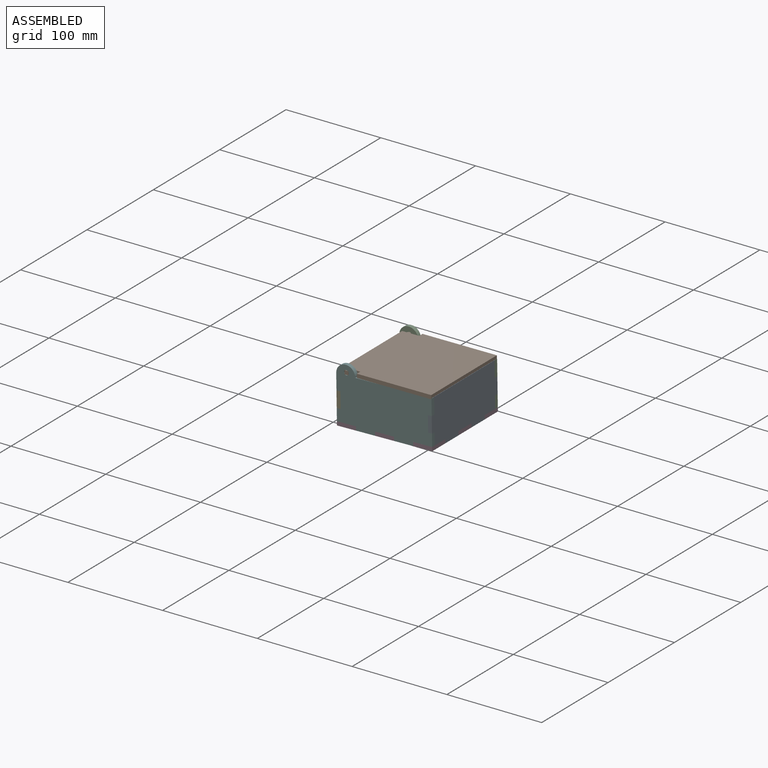
[diagram: assembled view]
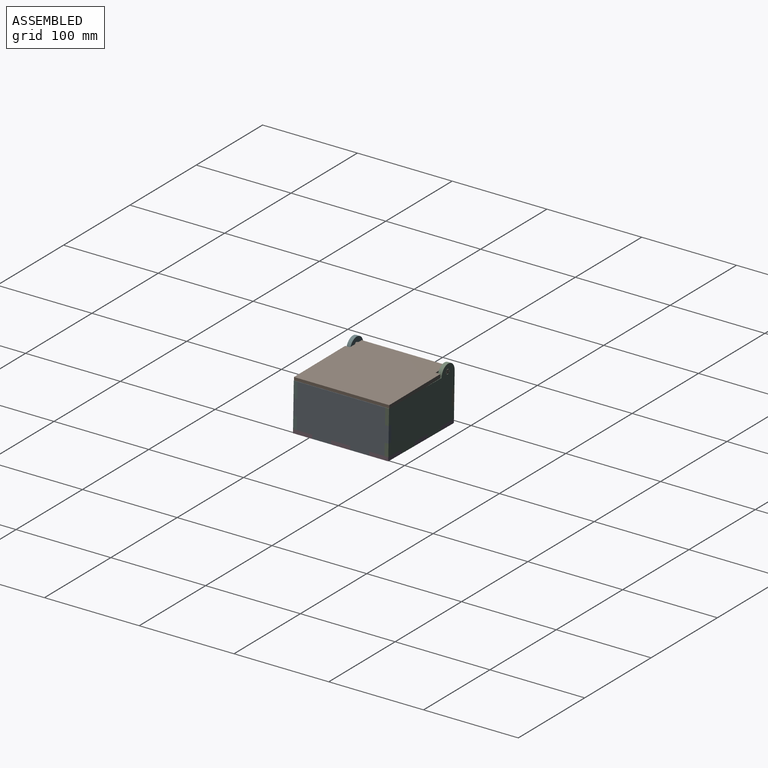
[diagram: assembled view, second angle]
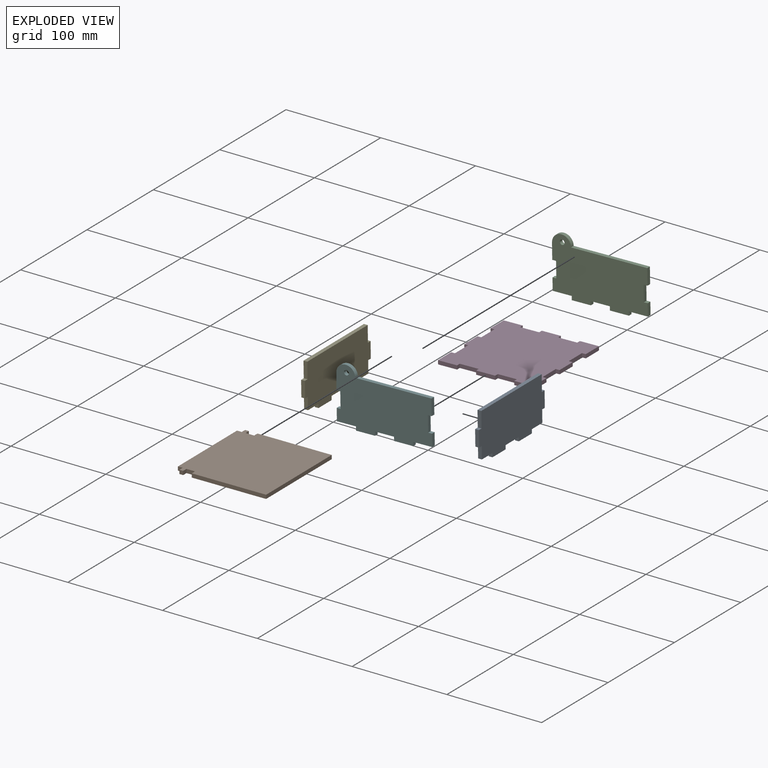
[diagram: exploded view]
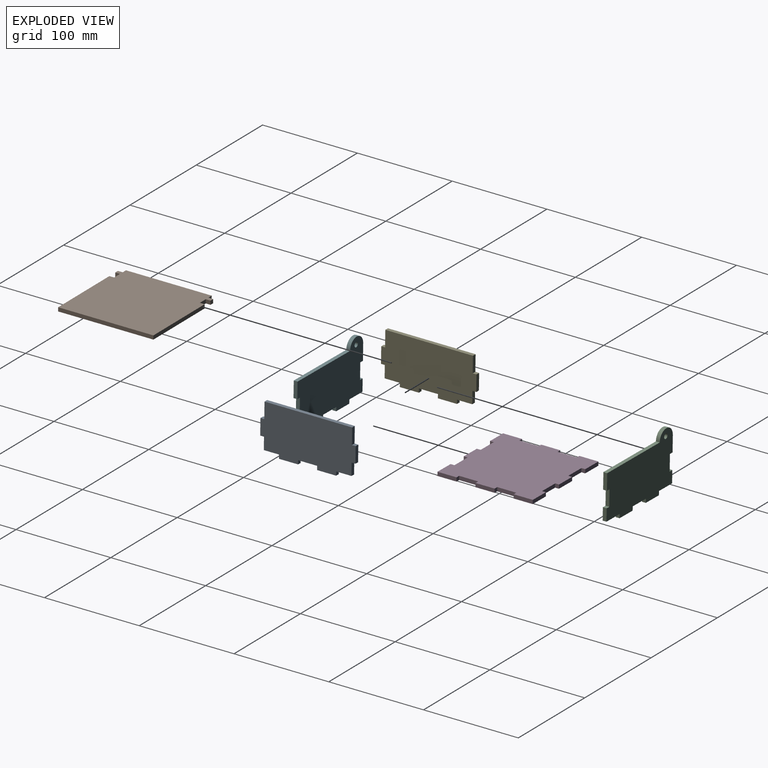
[diagram: exploded view, second angle]
ASSEMBLY  parts=6 mates=5
PART A: 22 faces, bbox 4x100x50 mm
  f0: plane 16.67x4mm, normal (0,-1,0), area 66.7mm2, adj f5,f6,f14,f18
  f1: plane 20x4mm, normal (0,0,-1), area 80mm2, adj f5,f6,f11,f15
  f2: plane 20x4mm, normal (0,0,-1), area 80mm2, adj f5,f6,f9,f16
  f3: plane 16.67x4mm, normal (0,1,0), area 66.7mm2, adj f5,f6,f10,f21
  f4: plane 92x4mm, normal (0,0,1), area 368mm2, adj f5,f6,f19,f20
  f5: plane 100x50mm, normal (1,0,0), area 4525.3mm2, adj f0,f1,f2,f3,f4,f7,f8,f9
  f6: plane 100x50mm, normal (-1,0,0), area 4525.3mm2, adj f0,f1,f2,f3,f4,f7,f8,f9
  f7: plane 12.67x4mm, normal (0,1,0), area 50.7mm2, adj f5,f6,f8,f10
  f8: plane 16x4mm, normal (0,0,-1), area 64mm2, adj f5,f6,f7,f9
  f9: plane 4x4mm, normal (0,1,0), area 16mm2, adj f2,f5,f6,f8
  f10: plane 4x4mm, normal (0,0,-1), area 16mm2, adj f3,f5,f6,f7
  f11: plane 4x4mm, normal (0,-1,0), area 16mm2, adj f1,f5,f6,f12
  f12: plane 16x4mm, normal (0,0,-1), area 64mm2, adj f5,f6,f11,f13
  f13: plane 12.67x4mm, normal (0,-1,0), area 50.7mm2, adj f5,f6,f12,f14
  f14: plane 4x4mm, normal (0,0,-1), area 16mm2, adj f0,f5,f6,f13
  f15: plane 4x4mm, normal (0,1,0), area 16mm2, adj f1,f5,f6,f17
  f16: plane 4x4mm, normal (0,-1,0), area 16mm2, adj f2,f5,f6,f17
  f17: plane 20x4mm, normal (0,0,-1), area 80mm2, adj f5,f6,f15,f16
  f18: plane 4x4mm, normal (0,0,1), area 16mm2, adj f0,f5,f6,f19
  f19: plane 16.67x4mm, normal (0,-1,0), area 66.7mm2, adj f4,f5,f6,f18
  f20: plane 16.67x4mm, normal (0,1,0), area 66.7mm2, adj f4,f5,f6,f21
  f21: plane 4x4mm, normal (0,0,1), area 16mm2, adj f3,f5,f6,f20
PART B: 18 faces, bbox 100x96x4 mm
  f0: plane 100x96mm, normal (0,0,-1), area 9460mm2, adj f2,f3,f4,f5,f6,f7,f8,f9
  f1: plane 100x96mm, normal (0,0,1), area 9460mm2, adj f2,f3,f4,f5,f6,f7,f8,f9
  f2: plane 5x4mm, normal (0,1,0), area 20mm2, adj f0,f1,f12,f16
  f3: plane 5x4mm, normal (0,-1,0), area 20mm2, adj f0,f1,f6,f16
  f4: plane 5x4mm, normal (0,1,0), area 20mm2, adj f0,f1,f13,f15
  f5: plane 5x4mm, normal (0,-1,0), area 20mm2, adj f0,f1,f7,f15
  f6: plane 5x4mm, normal (1,0,0), area 20mm2, adj f0,f1,f3,f17
  f7: plane 5x4mm, normal (-1,0,0), area 20mm2, adj f0,f1,f5,f17
  f8: plane 78x4mm, normal (-1,0,0), area 312mm2, adj f0,f1,f10,f14
  f9: plane 78x4mm, normal (1,0,0), area 312mm2, adj f0,f1,f10,f11
  f10: plane 100x4mm, normal (0,1,0), area 400mm2, adj f0,f1,f8,f9
  f11: plane 5x4mm, normal (0,-1,0), area 20mm2, adj f0,f1,f9,f12
  f12: plane 9x4mm, normal (1,0,0), area 36mm2, adj f0,f1,f2,f11
  f13: plane 9x4mm, normal (-1,0,0), area 36mm2, adj f0,f1,f4,f14
  f14: plane 5x4mm, normal (0,-1,0), area 20mm2, adj f0,f1,f8,f13
  f15: plane 4x4mm, normal (-1,0,0), area 16mm2, adj f0,f1,f4,f5
  f16: plane 4x4mm, normal (1,0,0), area 16mm2, adj f0,f1,f2,f3
  f17: plane 90x4mm, normal (0,-1,0), area 360mm2, adj f0,f1,f6,f7
PART C: 24 faces, bbox 100x4x60 mm
  f0: plane 80x4mm, normal (0,0,1), area 320mm2, adj f5,f6,f8,f22
  f1: plane 12.67x4mm, normal (-1,0,0), area 50.7mm2, adj f5,f6,f9,f19
  f2: plane 20x4mm, normal (0,0,-1), area 80mm2, adj f5,f6,f13,f20
  f3: plane 20x4mm, normal (0,0,-1), area 80mm2, adj f5,f6,f12,f18
  f4: plane 12.67x4mm, normal (1,0,0), area 50.7mm2, adj f5,f6,f15,f21
  f5: plane 100x60mm, normal (0,-1,0), area 4764.1mm2, adj f0,f1,f2,f3,f4,f7,f8,f9
  f6: plane 100x60mm, normal (0,1,0), area 4764.1mm2, adj f0,f1,f2,f3,f4,f7,f8,f9
  f7: plane 16.67x4mm, normal (-1,0,0), area 66.7mm2, adj f5,f6,f11,f22
  f8: plane 16.67x4mm, normal (1,0,0), area 66.7mm2, adj f0,f5,f6,f16
  f9: plane 4x4mm, normal (0,0,1), area 16mm2, adj f1,f5,f6,f10
  f10: plane 16.67x4mm, normal (-1,0,0), area 66.7mm2, adj f5,f6,f9,f11
  f11: plane 4x4mm, normal (0,0,-1), area 16mm2, adj f5,f6,f7,f10
  f12: plane 4x4mm, normal (1,0,0), area 16mm2, adj f3,f5,f6,f14
  f13: plane 4x4mm, normal (-1,0,0), area 16mm2, adj f2,f5,f6,f14
  f14: plane 20x4mm, normal (0,0,-1), area 80mm2, adj f5,f6,f12,f13
  f15: plane 4x4mm, normal (0,0,1), area 16mm2, adj f4,f5,f6,f17
  f16: plane 4x4mm, normal (0,0,-1), area 16mm2, adj f5,f6,f8,f17
  f17: plane 16.67x4mm, normal (1,0,0), area 66.7mm2, adj f5,f6,f15,f16
  f18: plane 4x4mm, normal (-1,0,0), area 16mm2, adj f3,f5,f6,f19
  f19: plane 20x4mm, normal (0,0,-1), area 80mm2, adj f1,f5,f6,f18
  f20: plane 4x4mm, normal (1,0,0), area 16mm2, adj f2,f5,f6,f21
  f21: plane 20x4mm, normal (0,0,-1), area 80mm2, adj f4,f5,f6,f20
  f22: cylinder r=10mm len=20mm, axis (0,1,0), area 125.7mm2, adj f0,f5,f6,f7
  f23: cylinder r=2.5mm len=5mm, axis (0,1,0), area 62.8mm2, adj f5,f6
PART D: 38 faces, bbox 100x100x4 mm
  f0: plane 20x4mm, normal (-1,0,0), area 80mm2, adj f3,f8,f9,f32
  f1: plane 20x4mm, normal (-1,0,0), area 80mm2, adj f8,f9,f29,f34
  f2: plane 20x4mm, normal (0,-1,0), area 80mm2, adj f8,f9,f15,f35
  f3: plane 20x4mm, normal (0,-1,0), area 80mm2, adj f0,f8,f9,f14
  f4: plane 20x4mm, normal (1,0,0), area 80mm2, adj f8,f9,f18,f22
  f5: plane 20x4mm, normal (1,0,0), area 80mm2, adj f8,f9,f11,f17
  f6: plane 20x4mm, normal (0,1,0), area 80mm2, adj f8,f9,f10,f26
  f7: plane 20x4mm, normal (0,1,0), area 80mm2, adj f8,f9,f23,f28
  f8: plane 100x100mm, normal (0,0,1), area 9360mm2, adj f0,f1,f2,f3,f4,f5,f6,f7
  f9: plane 100x100mm, normal (0,0,-1), area 9360mm2, adj f0,f1,f2,f3,f4,f5,f6,f7
  f10: plane 20x4mm, normal (-1,0,0), area 80mm2, adj f6,f8,f9,f31
  f11: plane 20x4mm, normal (0,-1,0), area 80mm2, adj f5,f8,f9,f36
  f12: plane 20x4mm, normal (1,0,0), area 80mm2, adj f8,f9,f13,f20
  f13: plane 20x4mm, normal (0,1,0), area 80mm2, adj f8,f9,f12,f25
  f14: plane 4x4mm, normal (1,0,0), area 16mm2, adj f3,f8,f9,f16
  f15: plane 4x4mm, normal (-1,0,0), area 16mm2, adj f2,f8,f9,f16
  f16: plane 20x4mm, normal (0,-1,0), area 80mm2, adj f8,f9,f14,f15
  f17: plane 4x4mm, normal (0,1,0), area 16mm2, adj f5,f8,f9,f19
  f18: plane 4x4mm, normal (0,-1,0), area 16mm2, adj f4,f8,f9,f19
  f19: plane 20x4mm, normal (1,0,0), area 80mm2, adj f8,f9,f17,f18
  f20: plane 4x4mm, normal (0,-1,0), area 16mm2, adj f8,f9,f12,f21
  f21: plane 20x4mm, normal (1,0,0), area 80mm2, adj f8,f9,f20,f22
  f22: plane 4x4mm, normal (0,1,0), area 16mm2, adj f4,f8,f9,f21
  f23: plane 4x4mm, normal (1,0,0), area 16mm2, adj f7,f8,f9,f24
  f24: plane 20x4mm, normal (0,1,0), area 80mm2, adj f8,f9,f23,f25
  f25: plane 4x4mm, normal (-1,0,0), area 16mm2, adj f8,f9,f13,f24
  f26: plane 4x4mm, normal (1,0,0), area 16mm2, adj f6,f8,f9,f27
  f27: plane 20x4mm, normal (0,1,0), area 80mm2, adj f8,f9,f26,f28
  f28: plane 4x4mm, normal (-1,0,0), area 16mm2, adj f7,f8,f9,f27
  f29: plane 4x4mm, normal (0,1,0), area 16mm2, adj f1,f8,f9,f30
  f30: plane 20x4mm, normal (-1,0,0), area 80mm2, adj f8,f9,f29,f31
  f31: plane 4x4mm, normal (0,-1,0), area 16mm2, adj f8,f9,f10,f30
  f32: plane 4x4mm, normal (0,1,0), area 16mm2, adj f0,f8,f9,f33
  f33: plane 20x4mm, normal (-1,0,0), area 80mm2, adj f8,f9,f32,f34
  f34: plane 4x4mm, normal (0,-1,0), area 16mm2, adj f1,f8,f9,f33
  f35: plane 4x4mm, normal (1,0,0), area 16mm2, adj f2,f8,f9,f37
  f36: plane 4x4mm, normal (-1,0,0), area 16mm2, adj f8,f9,f11,f37
  f37: plane 20x4mm, normal (0,-1,0), area 80mm2, adj f8,f9,f35,f36
PART E: same geometry as A
PART F: same geometry as C
PLACE A rot(axis=(-0.2,-0.9,0.38),1.1deg) t=(7.33,-9.9,-12.55)mm
PLACE B rot(axis=(0,0,-1),89.6deg) t=(-90.6,89.56,36.02)mm
PLACE C rot(axis=(-0.2,-0.9,0.38),1.1deg) t=(-89.4,89.36,-14.67)mm
PLACE D rot(axis=(-0.2,-0.9,0.38),1.1deg) t=(-88.65,-10.63,-14.26)mm fixed
PLACE E rot(axis=(-0.2,-0.9,0.38),1.1deg) t=(-88.65,-10.63,-14.26)mm
PLACE F rot(axis=(-0.2,-0.9,0.38),1.1deg) t=(-88.68,-6.63,-14.28)mm
MATE fastened E.f11 <-> D.f32  axis (0.01,-1,0) through (-86.83,9.39,-12.31)mm
MATE fastened D.f7 <-> C.f6  axis (-0.01,1,0) through (-49.48,89.68,-9.95)mm
MATE revolute B.f16 <-> F.f23  axis (0.01,-1,0) through (-78.85,-10.35,38.46)mm
MATE fastened D.f14 <-> F.f18  axis (1,0.01,0.02) through (-68.7,-8.47,-11.91)mm
MATE fastened A.f9 <-> D.f20  axis (-0.01,1,0) through (8.69,70.12,-10.83)mm
